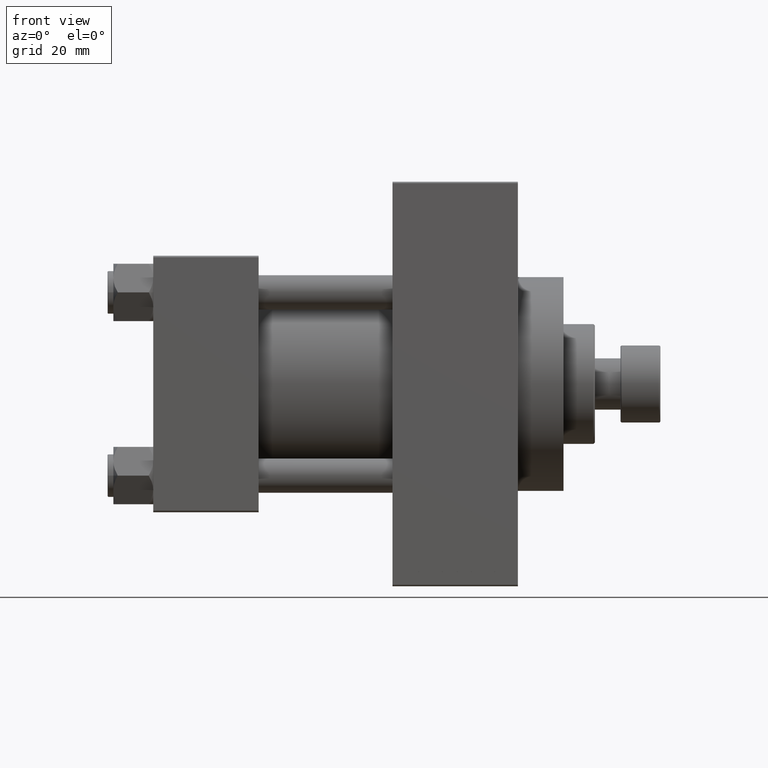
[diagram: clean part render]
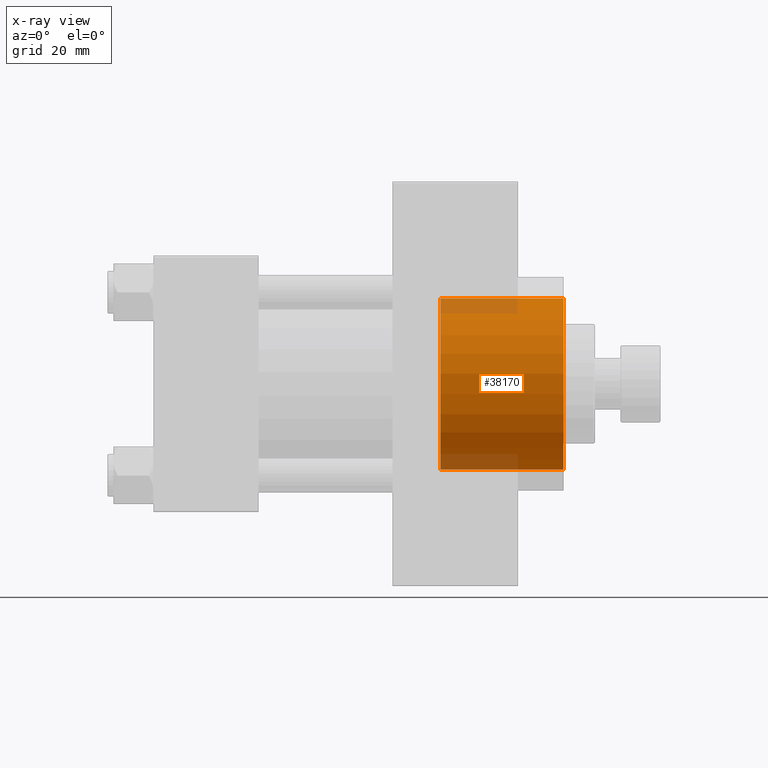
[diagram: x-ray — body ghosted, one internal face saturated and labeled with its STEP entity id]
A machine part, front view, then the same camera in x-ray: the body is ghosted and one INTERNAL B-rep face — a face not visible from any outside direction — is saturated and labeled: STEP entity #38170.
In plain terms, the highlighted cylindrical surface (partial cylindrical patch) has radius 30 mm, axis along (1, 0, 0).
Its self-contained STEP definition (entity closure, byte-faithful):
#3018 = VERTEX_POINT ( 'NONE', #32003 ) ;
#4191 = VECTOR ( 'NONE', #46092, 1000.000000000000000 ) ;
#4338 = DIRECTION ( 'NONE',  ( 0.000000000000000000, 0.000000000000000000, -1.000000000000000000 ) ) ;
#6576 = CARTESIAN_POINT ( 'NONE',  ( 144.0000000000000284, 0.000000000000000000, -30.00000000000000000 ) ) ;
#9293 = ORIENTED_EDGE ( 'NONE', *, *, #25053, .T. ) ;
#11552 = CARTESIAN_POINT ( 'NONE',  ( 144.0000000000000284, 0.000000000000000000, 0.000000000000000000 ) ) ;
#11955 = CIRCLE ( 'NONE', #35053, 30.00000000000000000 ) ;
#12462 = CARTESIAN_POINT ( 'NONE',  ( 100.7400000000000233, 0.000000000000000000, -30.00000000000000000 ) ) ;
#13114 = VERTEX_POINT ( 'NONE', #32654 ) ;
#14652 = FACE_OUTER_BOUND ( 'NONE', #45656, .T. ) ;
#15212 = DIRECTION ( 'NONE',  ( 0.000000000000000000, 0.000000000000000000, -1.000000000000000000 ) ) ;
#16914 = DIRECTION ( 'NONE',  ( 0.000000000000000000, 0.000000000000000000, -1.000000000000000000 ) ) ;
#18989 = ORIENTED_EDGE ( 'NONE', *, *, #40730, .F. ) ;
#20527 = DIRECTION ( 'NONE',  ( 1.000000000000000000, -0.000000000000000000, -0.000000000000000000 ) ) ;
#20650 = LINE ( 'NONE', #38985, #26989 ) ;
#21895 = ORIENTED_EDGE ( 'NONE', *, *, #33943, .F. ) ;
#22574 = EDGE_CURVE ( 'NONE', #13114, #39719, #40330, .T. ) ;
#24162 = VERTEX_POINT ( 'NONE', #12462 ) ;
#25053 = EDGE_CURVE ( 'NONE', #3018, #13114, #20650, .T. ) ;
#26989 = VECTOR ( 'NONE', #31505, 1000.000000000000000 ) ;
#28011 = AXIS2_PLACEMENT_3D ( 'NONE', #11552, #30365, #4338 ) ;
#29338 = LINE ( 'NONE', #46330, #4191 ) ;
#30365 = DIRECTION ( 'NONE',  ( 1.000000000000000000, 0.000000000000000000, 0.000000000000000000 ) ) ;
#31505 = DIRECTION ( 'NONE',  ( 1.000000000000000000, -0.000000000000000000, -0.000000000000000000 ) ) ;
#32003 = CARTESIAN_POINT ( 'NONE',  ( 100.7400000000000233, 3.673940397442059178E-15, 30.00000000000000000 ) ) ;
#32654 = CARTESIAN_POINT ( 'NONE',  ( 144.0000000000000284, 3.673940397442059178E-15, 30.00000000000000000 ) ) ;
#33943 = EDGE_CURVE ( 'NONE', #24162, #39719, #29338, .T. ) ;
#35053 = AXIS2_PLACEMENT_3D ( 'NONE', #43465, #44400, #15212 ) ;
#36834 = CARTESIAN_POINT ( 'NONE',  ( 100.7400000000000233, 0.000000000000000000, 0.000000000000000000 ) ) ;
#37289 = AXIS2_PLACEMENT_3D ( 'NONE', #36834, #20527, #16914 ) ;
#38170 = ADVANCED_FACE ( 'NONE', ( #14652 ), #44067, .F. ) ;
#38985 = CARTESIAN_POINT ( 'NONE',  ( 100.7400000000000233, 3.673940397442059178E-15, 30.00000000000000000 ) ) ;
#39719 = VERTEX_POINT ( 'NONE', #6576 ) ;
#40330 = CIRCLE ( 'NONE', #28011, 30.00000000000000000 ) ;
#40730 = EDGE_CURVE ( 'NONE', #3018, #24162, #11955, .T. ) ;
#43118 = ORIENTED_EDGE ( 'NONE', *, *, #22574, .T. ) ;
#43465 = CARTESIAN_POINT ( 'NONE',  ( 100.7400000000000233, 0.000000000000000000, 0.000000000000000000 ) ) ;
#44067 = CYLINDRICAL_SURFACE ( 'NONE', #37289, 30.00000000000000000 ) ;
#44400 = DIRECTION ( 'NONE',  ( 1.000000000000000000, 0.000000000000000000, 0.000000000000000000 ) ) ;
#45656 = EDGE_LOOP ( 'NONE', ( #18989, #9293, #43118, #21895 ) ) ;
#46092 = DIRECTION ( 'NONE',  ( 1.000000000000000000, -0.000000000000000000, -0.000000000000000000 ) ) ;
#46330 = CARTESIAN_POINT ( 'NONE',  ( 100.7400000000000233, 0.000000000000000000, -30.00000000000000000 ) ) ;